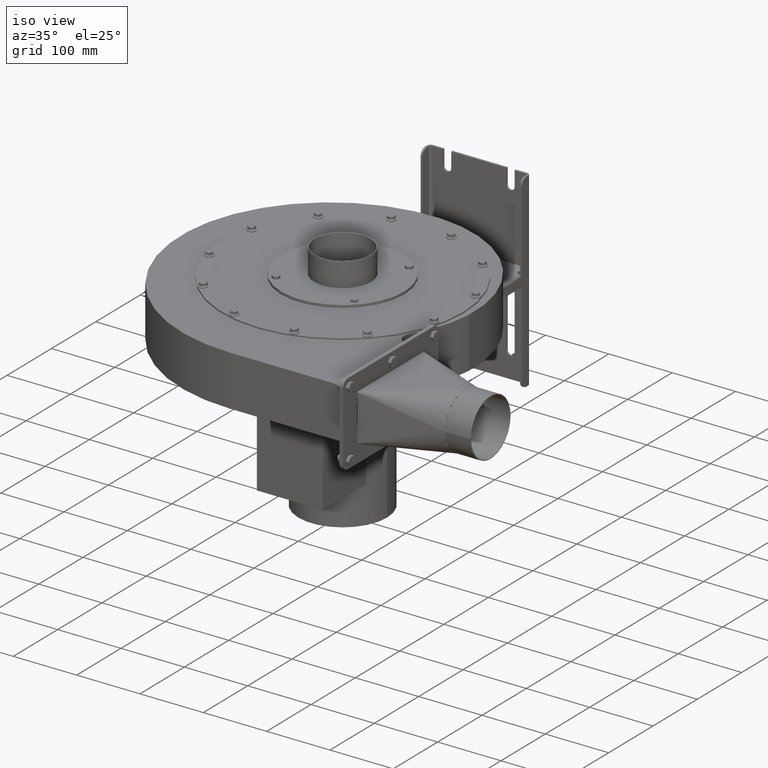
[diagram: clean part render]
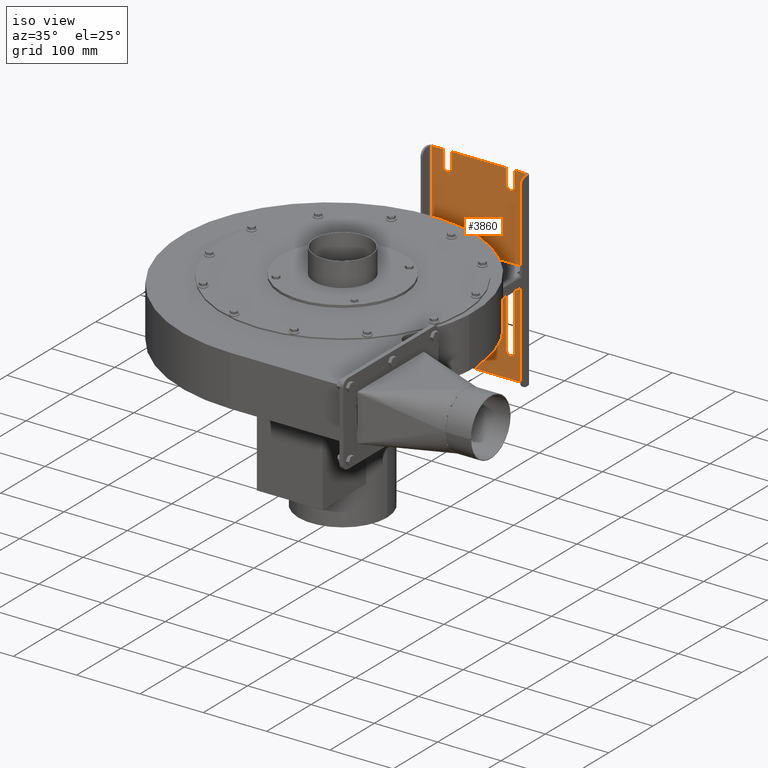
[diagram: same view with one face highlighted and labeled with its STEP entity id]
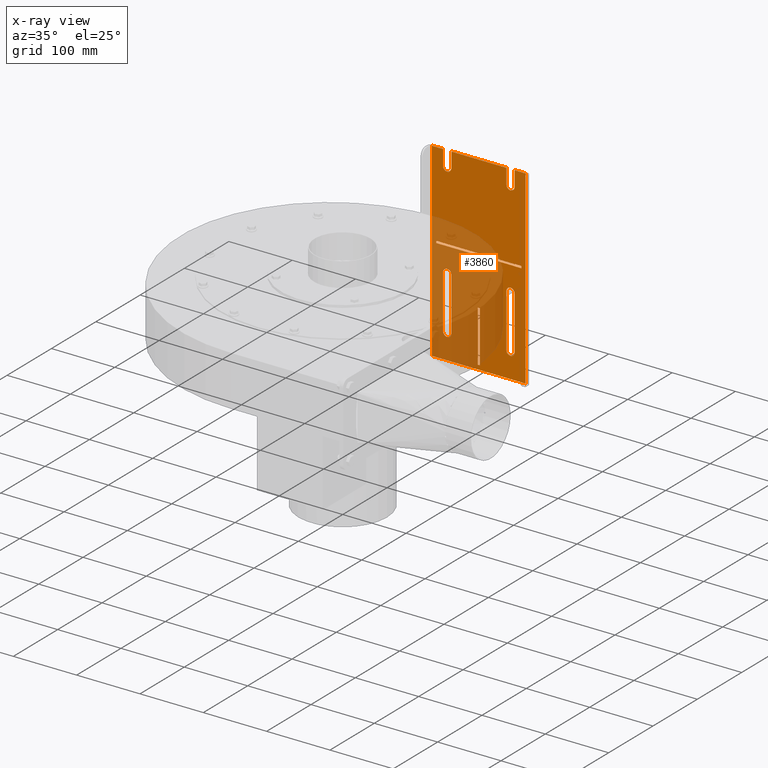
[diagram: x-ray of the same camera — body ghosted, the highlighted face saturated]
A machine part, iso view. The second image highlights one B-rep face of the part: STEP entity #3860.
The next image is the same camera in x-ray: the body ghosted, the highlighted face saturated — about 45% of this face is hidden behind the body in this view.
In plain terms, the highlighted planar face has unit normal (0, -1, 0).
Its self-contained STEP definition (entity closure, byte-faithful):
#3860 = ADVANCED_FACE( 'NONE', ( #9031, #9032, #9033, #9034, #9035 ), #9036, .T. );
#9031 = FACE_OUTER_BOUND( '', #15530, .T. );
#9032 = FACE_BOUND( '', #15531, .T. );
#9033 = FACE_BOUND( '', #15532, .T. );
#9034 = FACE_BOUND( '', #15533, .T. );
#9035 = FACE_BOUND( '', #15534, .T. );
#9036 = PLANE( '', #15535 );
#15530 = EDGE_LOOP( '', ( #27190, #27191, #27192, #27193, #27194, #27195, #27196, #27197, #27198, #27199, #27200, #27201 ) );
#15531 = EDGE_LOOP( '', ( #27202, #27203, #27204, #27205 ) );
#15532 = EDGE_LOOP( '', ( #27206, #27207, #27208, #27209 ) );
#15533 = EDGE_LOOP( '', ( #27210, #27211, #27212, #27213, #27214, #27215, #27216, #27217, #27218, #27219, #27220, #27221 ) );
#15534 = EDGE_LOOP( '', ( #27222, #27223, #27224, #27225, #27226, #27227, #27228, #27229, #27230, #27231, #27232, #27233 ) );
#15535 = AXIS2_PLACEMENT_3D( '', #27234, #27235, #27236 );
#27190 = ORIENTED_EDGE( '', *, *, #38929, .T. );
#27191 = ORIENTED_EDGE( '', *, *, #38930, .T. );
#27192 = ORIENTED_EDGE( '', *, *, #37995, .T. );
#27193 = ORIENTED_EDGE( '', *, *, #38931, .T. );
#27194 = ORIENTED_EDGE( '', *, *, #35351, .T. );
#27195 = ORIENTED_EDGE( '', *, *, #38932, .T. );
#27196 = ORIENTED_EDGE( '', *, *, #35978, .T. );
#27197 = ORIENTED_EDGE( '', *, *, #38933, .T. );
#27198 = ORIENTED_EDGE( '', *, *, #38934, .T. );
#27199 = ORIENTED_EDGE( '', *, *, #37593, .T. );
#27200 = ORIENTED_EDGE( '', *, *, #38935, .T. );
#27201 = ORIENTED_EDGE( '', *, *, #38936, .T. );
#27202 = ORIENTED_EDGE( '', *, *, #38129, .T. );
#27203 = ORIENTED_EDGE( '', *, *, #38937, .T. );
#27204 = ORIENTED_EDGE( '', *, *, #37173, .T. );
#27205 = ORIENTED_EDGE( '', *, *, #37613, .T. );
#27206 = ORIENTED_EDGE( '', *, *, #37742, .T. );
#27207 = ORIENTED_EDGE( '', *, *, #35613, .T. );
#27208 = ORIENTED_EDGE( '', *, *, #35033, .T. );
#27209 = ORIENTED_EDGE( '', *, *, #34959, .T. );
#27210 = ORIENTED_EDGE( '', *, *, #35265, .T. );
#27211 = ORIENTED_EDGE( '', *, *, #37531, .T. );
#27212 = ORIENTED_EDGE( '', *, *, #38025, .T. );
#27213 = ORIENTED_EDGE( '', *, *, #38938, .T. );
#27214 = ORIENTED_EDGE( '', *, *, #36126, .T. );
#27215 = ORIENTED_EDGE( '', *, *, #34807, .T. );
#27216 = ORIENTED_EDGE( '', *, *, #38939, .T. );
#27217 = ORIENTED_EDGE( '', *, *, #38195, .T. );
#27218 = ORIENTED_EDGE( '', *, *, #36128, .T. );
#27219 = ORIENTED_EDGE( '', *, *, #38940, .T. );
#27220 = ORIENTED_EDGE( '', *, *, #38023, .T. );
#27221 = ORIENTED_EDGE( '', *, *, #38941, .T. );
#27222 = ORIENTED_EDGE( '', *, *, #38330, .T. );
#27223 = ORIENTED_EDGE( '', *, *, #38942, .T. );
#27224 = ORIENTED_EDGE( '', *, *, #38943, .T. );
#27225 = ORIENTED_EDGE( '', *, *, #37458, .T. );
#27226 = ORIENTED_EDGE( '', *, *, #38944, .T. );
#27227 = ORIENTED_EDGE( '', *, *, #38945, .T. );
#27228 = ORIENTED_EDGE( '', *, *, #35300, .T. );
#27229 = ORIENTED_EDGE( '', *, *, #38946, .T. );
#27230 = ORIENTED_EDGE( '', *, *, #38947, .T. );
#27231 = ORIENTED_EDGE( '', *, *, #37989, .T. );
#27232 = ORIENTED_EDGE( '', *, *, #38948, .T. );
#27233 = ORIENTED_EDGE( '', *, *, #37505, .T. );
#27234 = CARTESIAN_POINT( '', ( 1.00251468229415E-012, 307.000000000000, -99.0000000000000 ) );
#27235 = DIRECTION( '', ( 1.92055561245564E-015, -1.00000000000000, 3.00055383520235E-016 ) );
#27236 = DIRECTION( '', ( 0.000000000000000, -3.00055383520235E-016, -1.00000000000000 ) );
#34807 = EDGE_CURVE( 'NONE', #40835, #40833, #40836, .T. );
#34959 = EDGE_CURVE( 'NONE', #41106, #41104, #41107, .T. );
#35033 = EDGE_CURVE( 'NONE', #41236, #41106, #41237, .T. );
#35265 = EDGE_CURVE( 'NONE', #41648, #41646, #41649, .T. );
#35300 = EDGE_CURVE( 'NONE', #41710, #41708, #41711, .T. );
#35351 = EDGE_CURVE( 'NONE', #41796, #41794, #41797, .T. );
#35613 = EDGE_CURVE( 'NONE', #42242, #41236, #42243, .T. );
#35978 = EDGE_CURVE( 'NONE', #42865, #42863, #42866, .T. );
#36126 = EDGE_CURVE( 'NONE', #43118, #40835, #43119, .T. );
#36128 = EDGE_CURVE( 'NONE', #43122, #43120, #43123, .T. );
#37173 = EDGE_CURVE( 'NONE', #44912, #44910, #44913, .T. );
#37458 = EDGE_CURVE( 'NONE', #45376, #45374, #45377, .T. );
#37505 = EDGE_CURVE( 'NONE', #45449, #45447, #45450, .T. );
#37531 = EDGE_CURVE( 'NONE', #41646, #45486, #45488, .T. );
#37593 = EDGE_CURVE( 'NONE', #45578, #45582, #45584, .T. );
#37613 = EDGE_CURVE( 'NONE', #44910, #45609, #45611, .T. );
#37742 = EDGE_CURVE( 'NONE', #41104, #42242, #45800, .T. );
#37989 = EDGE_CURVE( 'NONE', #46161, #45794, #46162, .T. );
#37995 = EDGE_CURVE( 'NONE', #46172, #46170, #46173, .T. );
#38023 = EDGE_CURVE( 'NONE', #46215, #46213, #46216, .T. );
#38025 = EDGE_CURVE( 'NONE', #45486, #46217, #46219, .T. );
#38129 = EDGE_CURVE( 'NONE', #45609, #46364, #46366, .T. );
#38195 = EDGE_CURVE( 'NONE', #46459, #43122, #46460, .T. );
#38330 = EDGE_CURVE( 'NONE', #45447, #46648, #46650, .T. );
#38929 = EDGE_CURVE( 'NONE', #47552, #47553, #47554, .T. );
#38930 = EDGE_CURVE( 'NONE', #47553, #46172, #47555, .T. );
#38931 = EDGE_CURVE( 'NONE', #46170, #41796, #47556, .T. );
#38932 = EDGE_CURVE( 'NONE', #41794, #42865, #47557, .T. );
#38933 = EDGE_CURVE( 'NONE', #42863, #47558, #47559, .T. );
#38934 = EDGE_CURVE( 'NONE', #47558, #45578, #47560, .T. );
#38935 = EDGE_CURVE( 'NONE', #45582, #47561, #47562, .T. );
#38936 = EDGE_CURVE( 'NONE', #47561, #47552, #47563, .T. );
#38937 = EDGE_CURVE( 'NONE', #46364, #44912, #47564, .T. );
#38938 = EDGE_CURVE( 'NONE', #46217, #43118, #47565, .T. );
#38939 = EDGE_CURVE( 'NONE', #40833, #46459, #47566, .T. );
#38940 = EDGE_CURVE( 'NONE', #43120, #46215, #47567, .T. );
#38941 = EDGE_CURVE( 'NONE', #46213, #41648, #47568, .T. );
#38942 = EDGE_CURVE( 'NONE', #46648, #47569, #47570, .T. );
#38943 = EDGE_CURVE( 'NONE', #47569, #45376, #47571, .T. );
#38944 = EDGE_CURVE( 'NONE', #45374, #47572, #47573, .T. );
#38945 = EDGE_CURVE( 'NONE', #47572, #41710, #47574, .T. );
#38946 = EDGE_CURVE( 'NONE', #41708, #47575, #47576, .T. );
#38947 = EDGE_CURVE( 'NONE', #47575, #46161, #47577, .T. );
#38948 = EDGE_CURVE( 'NONE', #45794, #45449, #47578, .T. );
#40833 = VERTEX_POINT( 'NONE', #49618 );
#40835 = VERTEX_POINT( 'NONE', #49621 );
#40836 = LINE( '', #49622, #49623 );
#41104 = VERTEX_POINT( 'NONE', #50064 );
#41106 = VERTEX_POINT( 'NONE', #50067 );
#41107 = CIRCLE( '', #50068, 6.50000000000000 );
#41236 = VERTEX_POINT( 'NONE', #50279 );
#41237 = LINE( '', #50280, #50281 );
#41646 = VERTEX_POINT( 'NONE', #50911 );
#41648 = VERTEX_POINT( 'NONE', #50914 );
#41649 = LINE( '', #50915, #50916 );
#41708 = VERTEX_POINT( 'NONE', #51016 );
#41710 = VERTEX_POINT( 'NONE', #51019 );
#41711 = LINE( '', #51020, #51021 );
#41794 = VERTEX_POINT( 'NONE', #51128 );
#41796 = VERTEX_POINT( 'NONE', #51130 );
#41797 = LINE( '', #51131, #51132 );
#42242 = VERTEX_POINT( 'NONE', #51990 );
#42243 = CIRCLE( '', #51991, 6.50000000000000 );
#42863 = VERTEX_POINT( 'NONE', #53093 );
#42865 = VERTEX_POINT( 'NONE', #53095 );
#42866 = LINE( '', #53096, #53097 );
#43118 = VERTEX_POINT( 'NONE', #53515 );
#43119 = LINE( '', #53516, #53517 );
#43120 = VERTEX_POINT( 'NONE', #53518 );
#43122 = VERTEX_POINT( 'NONE', #53521 );
#43123 = LINE( '', #53522, #53523 );
#44910 = VERTEX_POINT( 'NONE', #56194 );
#44912 = VERTEX_POINT( 'NONE', #56197 );
#44913 = LINE( '', #56198, #56199 );
#45374 = VERTEX_POINT( 'NONE', #57000 );
#45376 = VERTEX_POINT( 'NONE', #57003 );
#45377 = LINE( '', #57004, #57005 );
#45447 = VERTEX_POINT( 'NONE', #57107 );
#45449 = VERTEX_POINT( 'NONE', #57110 );
#45450 = LINE( '', #57111, #57112 );
#45486 = VERTEX_POINT( 'NONE', #57163 );
#45488 = LINE( '', #57166, #57167 );
#45578 = VERTEX_POINT( 'NONE', #57353 );
#45582 = VERTEX_POINT( 'NONE', #57359 );
#45584 = LINE( '', #57362, #57363 );
#45609 = VERTEX_POINT( 'NONE', #57398 );
#45611 = CIRCLE( '', #57401, 6.50000000000000 );
#45794 = VERTEX_POINT( 'NONE', #57692 );
#45800 = LINE( '', #57702, #57703 );
#46161 = VERTEX_POINT( 'NONE', #58355 );
#46162 = LINE( '', #58356, #58357 );
#46170 = VERTEX_POINT( 'NONE', #58367 );
#46172 = VERTEX_POINT( 'NONE', #58370 );
#46173 = CIRCLE( '', #58371, 6.50000000000000 );
#46213 = VERTEX_POINT( 'NONE', #58441 );
#46215 = VERTEX_POINT( 'NONE', #58444 );
#46216 = LINE( '', #58445, #58446 );
#46217 = VERTEX_POINT( 'NONE', #58447 );
#46219 = LINE( '', #58450, #58451 );
#46364 = VERTEX_POINT( 'NONE', #58661 );
#46366 = LINE( '', #58664, #58665 );
#46459 = VERTEX_POINT( 'NONE', #58804 );
#46460 = LINE( '', #58805, #58806 );
#46648 = VERTEX_POINT( 'NONE', #59150 );
#46650 = LINE( '', #59153, #59154 );
#47552 = VERTEX_POINT( 'NONE', #60658 );
#47553 = VERTEX_POINT( 'NONE', #60659 );
#47554 = LINE( '', #60660, #60661 );
#47555 = LINE( '', #60662, #60663 );
#47556 = LINE( '', #60664, #60665 );
#47557 = LINE( '', #60666, #60667 );
#47558 = VERTEX_POINT( 'NONE', #60668 );
#47559 = LINE( '', #60669, #60670 );
#47560 = LINE( '', #60671, #60672 );
#47561 = VERTEX_POINT( 'NONE', #60673 );
#47562 = CIRCLE( '', #60674, 6.50000000000000 );
#47563 = LINE( '', #60675, #60676 );
#47564 = CIRCLE( '', #60677, 6.50000000000000 );
#47565 = LINE( '', #60678, #60679 );
#47566 = LINE( '', #60680, #60681 );
#47567 = LINE( '', #60682, #60683 );
#47568 = LINE( '', #60684, #60685 );
#47569 = VERTEX_POINT( 'NONE', #60686 );
#47570 = LINE( '', #60687, #60688 );
#47571 = LINE( '', #60689, #60690 );
#47572 = VERTEX_POINT( 'NONE', #60691 );
#47573 = LINE( '', #60692, #60693 );
#47574 = LINE( '', #60694, #60695 );
#47575 = VERTEX_POINT( 'NONE', #60696 );
#47576 = LINE( '', #60697, #60698 );
#47577 = LINE( '', #60699, #60700 );
#47578 = LINE( '', #60701, #60702 );
#49618 = CARTESIAN_POINT( '', ( -67.1999999999990, 307.000000000000, -86.1000000000000 ) );
#49621 = CARTESIAN_POINT( '', ( -56.7999999999990, 307.000000000000, -86.1000000000000 ) );
#49622 = CARTESIAN_POINT( '', ( 1.00251468229415E-012, 307.000000000000, -86.1000000000000 ) );
#49623 = VECTOR( '', #64480, 1000.00000000000 );
#50064 = CARTESIAN_POINT( '', ( 43.5000000000011, 307.000000000000, -209.000000000000 ) );
#50067 = CARTESIAN_POINT( '', ( 56.5000000000010, 307.000000000000, -209.000000000000 ) );
#50068 = AXIS2_PLACEMENT_3D( '', #64673, #64674, #64675 );
#50279 = CARTESIAN_POINT( '', ( 56.5000000000011, 307.000000000000, -125.000000000000 ) );
#50280 = CARTESIAN_POINT( '', ( 56.5000000000010, 307.000000000000, -99.0000000000000 ) );
#50281 = VECTOR( '', #64754, 1000.00000000000 );
#50911 = CARTESIAN_POINT( '', ( 67.2000000000010, 307.000000000000, -86.1000000000000 ) );
#50914 = CARTESIAN_POINT( '', ( 67.2000000000010, 307.000000000000, -82.9000000000000 ) );
#50915 = CARTESIAN_POINT( '', ( 67.2000000000010, 307.000000000000, -99.0000000000000 ) );
#50916 = VECTOR( '', #65094, 1000.00000000000 );
#51016 = CARTESIAN_POINT( '', ( -1.59999999999883, 307.000000000000, -242.200000000000 ) );
#51019 = CARTESIAN_POINT( '', ( 1.60000000000116, 307.000000000000, -242.200000000000 ) );
#51020 = CARTESIAN_POINT( '', ( 1.00251468229415E-012, 307.000000000000, -242.200000000000 ) );
#51021 = VECTOR( '', #65126, 1000.00000000000 );
#51128 = CARTESIAN_POINT( '', ( -73.9999999999991, 307.000000000000, 51.0000000000000 ) );
#51130 = CARTESIAN_POINT( '', ( -56.4999999999990, 307.000000000000, 51.0000000000000 ) );
#51131 = CARTESIAN_POINT( '', ( 1.00251468229415E-012, 307.000000000000, 51.0000000000000 ) );
#51132 = VECTOR( '', #65192, 1000.00000000000 );
#51990 = CARTESIAN_POINT( '', ( 43.5000000000010, 307.000000000000, -125.000000000000 ) );
#51991 = AXIS2_PLACEMENT_3D( '', #65468, #65469, #65470 );
#53093 = CARTESIAN_POINT( '', ( 74.0000000000011, 307.000000000000, -249.000000000000 ) );
#53095 = CARTESIAN_POINT( '', ( -73.9999999999989, 307.000000000000, -249.000000000000 ) );
#53096 = CARTESIAN_POINT( '', ( 1.00251468229415E-012, 307.000000000000, -249.000000000000 ) );
#53097 = VECTOR( '', #65921, 1000.00000000000 );
#53515 = CARTESIAN_POINT( '', ( -56.7999999999993, 307.000000000000, -86.0000000000000 ) );
#53516 = CARTESIAN_POINT( '', ( -56.7999999999990, 307.000000000000, -99.0000000000000 ) );
#53517 = VECTOR( '', #66083, 1000.00000000000 );
#53518 = CARTESIAN_POINT( '', ( -56.7999999999993, 307.000000000000, -83.0000000000000 ) );
#53521 = CARTESIAN_POINT( '', ( -56.7999999999990, 307.000000000000, -82.9000000000000 ) );
#53522 = CARTESIAN_POINT( '', ( -56.7999999999990, 307.000000000000, -99.0000000000000 ) );
#53523 = VECTOR( '', #66085, 1000.00000000000 );
#56194 = CARTESIAN_POINT( '', ( -56.4999999999989, 307.000000000000, -125.000000000000 ) );
#56197 = CARTESIAN_POINT( '', ( -56.4999999999989, 307.000000000000, -209.000000000000 ) );
#56198 = CARTESIAN_POINT( '', ( -56.4999999999990, 307.000000000000, -99.0000000000000 ) );
#56199 = VECTOR( '', #67757, 1000.00000000000 );
#57000 = CARTESIAN_POINT( '', ( 1.50000000000134, 307.000000000000, -231.800000000000 ) );
#57003 = CARTESIAN_POINT( '', ( 1.50000000000124, 307.000000000000, -171.200000000000 ) );
#57004 = CARTESIAN_POINT( '', ( 1.50000000000125, 307.000000000000, -99.0000000000000 ) );
#57005 = VECTOR( '', #68176, 1000.00000000000 );
#57107 = CARTESIAN_POINT( '', ( -1.59999999999892, 307.000000000000, -160.800000000000 ) );
#57110 = CARTESIAN_POINT( '', ( -1.59999999999892, 307.000000000000, -171.200000000000 ) );
#57111 = CARTESIAN_POINT( '', ( -1.59999999999892, 307.000000000000, -99.0000000000000 ) );
#57112 = VECTOR( '', #68221, 1000.00000000000 );
#57163 = CARTESIAN_POINT( '', ( 56.8000000000010, 307.000000000000, -86.1000000000000 ) );
#57166 = CARTESIAN_POINT( '', ( 1.00251468229415E-012, 307.000000000000, -86.1000000000000 ) );
#57167 = VECTOR( '', #68244, 1000.00000000000 );
#57353 = CARTESIAN_POINT( '', ( 56.5000000000009, 307.000000000000, 51.0000000000000 ) );
#57359 = CARTESIAN_POINT( '', ( 56.5000000000010, 307.000000000000, 27.0000000000000 ) );
#57362 = CARTESIAN_POINT( '', ( 56.5000000000010, 307.000000000000, -99.0000000000000 ) );
#57363 = VECTOR( '', #68310, 1000.00000000000 );
#57398 = CARTESIAN_POINT( '', ( -43.4999999999989, 307.000000000000, -125.000000000000 ) );
#57401 = AXIS2_PLACEMENT_3D( '', #68330, #68331, #68332 );
#57692 = CARTESIAN_POINT( '', ( -1.49999999999871, 307.000000000000, -171.200000000000 ) );
#57702 = CARTESIAN_POINT( '', ( 43.5000000000010, 307.000000000000, -99.0000000000000 ) );
#57703 = VECTOR( '', #68465, 1000.00000000000 );
#58355 = CARTESIAN_POINT( '', ( -1.49999999999857, 307.000000000000, -231.800000000000 ) );
#58356 = CARTESIAN_POINT( '', ( -1.49999999999857, 307.000000000000, -99.0000000000000 ) );
#58357 = VECTOR( '', #68700, 1000.00000000000 );
#58367 = CARTESIAN_POINT( '', ( -56.4999999999991, 307.000000000000, 27.0000000000000 ) );
#58370 = CARTESIAN_POINT( '', ( -43.4999999999991, 307.000000000000, 27.0000000000000 ) );
#58371 = AXIS2_PLACEMENT_3D( '', #68707, #68708, #68709 );
#58441 = CARTESIAN_POINT( '', ( 56.8000000000010, 307.000000000000, -82.9000000000000 ) );
#58444 = CARTESIAN_POINT( '', ( 56.8000000000010, 307.000000000000, -83.0000000000000 ) );
#58445 = CARTESIAN_POINT( '', ( 56.8000000000010, 307.000000000000, -99.0000000000000 ) );
#58446 = VECTOR( '', #68733, 1000.00000000000 );
#58447 = CARTESIAN_POINT( '', ( 56.8000000000010, 307.000000000000, -86.0000000000000 ) );
#58450 = CARTESIAN_POINT( '', ( 56.8000000000010, 307.000000000000, -99.0000000000000 ) );
#58451 = VECTOR( '', #68735, 1000.00000000000 );
#58661 = CARTESIAN_POINT( '', ( -43.4999999999989, 307.000000000000, -209.000000000000 ) );
#58664 = CARTESIAN_POINT( '', ( -43.4999999999990, 307.000000000000, -99.0000000000000 ) );
#58665 = VECTOR( '', #68843, 1000.00000000000 );
#58804 = CARTESIAN_POINT( '', ( -67.1999999999990, 307.000000000000, -82.9000000000000 ) );
#58805 = CARTESIAN_POINT( '', ( 1.00251468229415E-012, 307.000000000000, -82.9000000000000 ) );
#58806 = VECTOR( '', #68909, 1000.00000000000 );
#59150 = CARTESIAN_POINT( '', ( 1.60000000000108, 307.000000000000, -160.800000000000 ) );
#59153 = CARTESIAN_POINT( '', ( 1.00251468229415E-012, 307.000000000000, -160.800000000000 ) );
#59154 = VECTOR( '', #69031, 1000.00000000000 );
#60658 = CARTESIAN_POINT( '', ( 43.5000000000009, 307.000000000000, 51.0000000000000 ) );
#60659 = CARTESIAN_POINT( '', ( -43.4999999999991, 307.000000000000, 51.0000000000000 ) );
#60660 = CARTESIAN_POINT( '', ( 1.00251468229415E-012, 307.000000000000, 51.0000000000000 ) );
#60661 = VECTOR( '', #69961, 1000.00000000000 );
#60662 = CARTESIAN_POINT( '', ( -43.4999999999990, 307.000000000000, -99.0000000000000 ) );
#60663 = VECTOR( '', #69962, 1000.00000000000 );
#60664 = CARTESIAN_POINT( '', ( -56.4999999999990, 307.000000000000, -99.0000000000000 ) );
#60665 = VECTOR( '', #69963, 1000.00000000000 );
#60666 = CARTESIAN_POINT( '', ( -73.9999999999990, 307.000000000000, -99.0000000000000 ) );
#60667 = VECTOR( '', #69964, 1000.00000000000 );
#60668 = CARTESIAN_POINT( '', ( 74.0000000000009, 307.000000000000, 51.0000000000000 ) );
#60669 = CARTESIAN_POINT( '', ( 74.0000000000010, 307.000000000000, -99.0000000000000 ) );
#60670 = VECTOR( '', #69965, 1000.00000000000 );
#60671 = CARTESIAN_POINT( '', ( 1.00251468229415E-012, 307.000000000000, 51.0000000000000 ) );
#60672 = VECTOR( '', #69966, 1000.00000000000 );
#60673 = CARTESIAN_POINT( '', ( 43.5000000000008, 307.000000000000, 27.0000000000000 ) );
#60674 = AXIS2_PLACEMENT_3D( '', #69967, #69968, #69969 );
#60675 = CARTESIAN_POINT( '', ( 43.5000000000010, 307.000000000000, -99.0000000000000 ) );
#60676 = VECTOR( '', #69970, 1000.00000000000 );
#60677 = AXIS2_PLACEMENT_3D( '', #69971, #69972, #69973 );
#60678 = CARTESIAN_POINT( '', ( 1.00251468229415E-012, 307.000000000000, -86.0000000000000 ) );
#60679 = VECTOR( '', #69974, 1000.00000000000 );
#60680 = CARTESIAN_POINT( '', ( -67.1999999999990, 307.000000000000, -99.0000000000000 ) );
#60681 = VECTOR( '', #69975, 1000.00000000000 );
#60682 = CARTESIAN_POINT( '', ( 7.83008243973728E-013, 307.000000000000, -83.0000000000000 ) );
#60683 = VECTOR( '', #69976, 1000.00000000000 );
#60684 = CARTESIAN_POINT( '', ( 1.00251468229415E-012, 307.000000000000, -82.9000000000000 ) );
#60685 = VECTOR( '', #69977, 1000.00000000000 );
#60686 = CARTESIAN_POINT( '', ( 1.60000000000108, 307.000000000000, -171.200000000000 ) );
#60687 = CARTESIAN_POINT( '', ( 1.60000000000108, 307.000000000000, -99.0000000000000 ) );
#60688 = VECTOR( '', #69978, 1000.00000000000 );
#60689 = CARTESIAN_POINT( '', ( 1.00251468229415E-012, 307.000000000000, -171.200000000000 ) );
#60690 = VECTOR( '', #69979, 1000.00000000000 );
#60691 = CARTESIAN_POINT( '', ( 1.60000000000115, 307.000000000000, -231.800000000000 ) );
#60692 = CARTESIAN_POINT( '', ( 1.00251468229415E-012, 307.000000000000, -231.800000000000 ) );
#60693 = VECTOR( '', #69980, 1000.00000000000 );
#60694 = CARTESIAN_POINT( '', ( 1.60000000000115, 307.000000000000, -99.0000000000000 ) );
#60695 = VECTOR( '', #69981, 1000.00000000000 );
#60696 = CARTESIAN_POINT( '', ( -1.59999999999884, 307.000000000000, -231.800000000000 ) );
#60697 = CARTESIAN_POINT( '', ( -1.59999999999884, 307.000000000000, -99.0000000000000 ) );
#60698 = VECTOR( '', #69982, 1000.00000000000 );
#60699 = CARTESIAN_POINT( '', ( 1.00251468229415E-012, 307.000000000000, -231.800000000000 ) );
#60700 = VECTOR( '', #69983, 1000.00000000000 );
#60701 = CARTESIAN_POINT( '', ( 1.00251468229415E-012, 307.000000000000, -171.200000000000 ) );
#60702 = VECTOR( '', #69984, 1000.00000000000 );
#64480 = DIRECTION( '', ( -1.00000000000000, -1.92055561245564E-015, 5.76273050867317E-031 ) );
#64673 = CARTESIAN_POINT( '', ( 50.0000000000011, 307.000000000000, -209.000000000000 ) );
#64674 = DIRECTION( '', ( 0.000000000000000, 1.00000000000000, -2.05023563559743E-030 ) );
#64675 = DIRECTION( '', ( -1.00000000000000, 0.000000000000000, 0.000000000000000 ) );
#64754 = DIRECTION( '', ( 0.000000000000000, -3.00055383520235E-016, -1.00000000000000 ) );
#65094 = DIRECTION( '', ( 0.000000000000000, -3.00055383520235E-016, -1.00000000000000 ) );
#65126 = DIRECTION( '', ( -1.00000000000000, -1.92055561245564E-015, 5.76273050867317E-031 ) );
#65192 = DIRECTION( '', ( -1.00000000000000, -1.92055561245564E-015, 5.76273050867317E-031 ) );
#65468 = CARTESIAN_POINT( '', ( 50.0000000000011, 307.000000000000, -125.000000000000 ) );
#65469 = DIRECTION( '', ( 0.000000000000000, 1.00000000000000, -2.05023563559743E-030 ) );
#65470 = DIRECTION( '', ( -1.00000000000000, 0.000000000000000, 0.000000000000000 ) );
#65921 = DIRECTION( '', ( 1.00000000000000, 1.92055561245564E-015, -5.76273050867317E-031 ) );
#66083 = DIRECTION( '', ( 0.000000000000000, -3.00055383520235E-016, -1.00000000000000 ) );
#66085 = DIRECTION( '', ( 0.000000000000000, -3.00055383520235E-016, -1.00000000000000 ) );
#67757 = DIRECTION( '', ( 0.000000000000000, 3.00055383520235E-016, 1.00000000000000 ) );
#68176 = DIRECTION( '', ( 0.000000000000000, -3.00055383520235E-016, -1.00000000000000 ) );
#68221 = DIRECTION( '', ( 0.000000000000000, 3.00055383520235E-016, 1.00000000000000 ) );
#68244 = DIRECTION( '', ( -1.00000000000000, -1.92055561245564E-015, 5.76273050867317E-031 ) );
#68310 = DIRECTION( '', ( 0.000000000000000, -3.00055383520235E-016, -1.00000000000000 ) );
#68330 = CARTESIAN_POINT( '', ( -49.9999999999989, 307.000000000000, -125.000000000000 ) );
#68331 = DIRECTION( '', ( 0.000000000000000, 1.00000000000000, -2.05023563559743E-030 ) );
#68332 = DIRECTION( '', ( -1.00000000000000, 0.000000000000000, 0.000000000000000 ) );
#68465 = DIRECTION( '', ( 0.000000000000000, 3.00055383520235E-016, 1.00000000000000 ) );
#68700 = DIRECTION( '', ( 0.000000000000000, 3.00055383520235E-016, 1.00000000000000 ) );
#68707 = CARTESIAN_POINT( '', ( -49.9999999999991, 307.000000000000, 27.0000000000000 ) );
#68708 = DIRECTION( '', ( 0.000000000000000, 1.00000000000000, -2.05023563559743E-030 ) );
#68709 = DIRECTION( '', ( -1.00000000000000, 0.000000000000000, 0.000000000000000 ) );
#68733 = DIRECTION( '', ( 0.000000000000000, 3.00055383520235E-016, 1.00000000000000 ) );
#68735 = DIRECTION( '', ( 0.000000000000000, 3.00055383520235E-016, 1.00000000000000 ) );
#68843 = DIRECTION( '', ( 0.000000000000000, -3.00055383520235E-016, -1.00000000000000 ) );
#68909 = DIRECTION( '', ( 1.00000000000000, 1.92055561245564E-015, -5.76273050867317E-031 ) );
#69031 = DIRECTION( '', ( 1.00000000000000, 1.92055561245564E-015, -5.76273050867317E-031 ) );
#69961 = DIRECTION( '', ( -1.00000000000000, -1.92055561245564E-015, 5.76273050867317E-031 ) );
#69962 = DIRECTION( '', ( 0.000000000000000, -3.00055383520235E-016, -1.00000000000000 ) );
#69963 = DIRECTION( '', ( 0.000000000000000, 3.00055383520235E-016, 1.00000000000000 ) );
#69964 = DIRECTION( '', ( 0.000000000000000, -3.00055383520235E-016, -1.00000000000000 ) );
#69965 = DIRECTION( '', ( 0.000000000000000, 3.00055383520235E-016, 1.00000000000000 ) );
#69966 = DIRECTION( '', ( -1.00000000000000, -1.92055561245564E-015, 5.76273050867317E-031 ) );
#69967 = CARTESIAN_POINT( '', ( 50.0000000000008, 307.000000000000, 27.0000000000000 ) );
#69968 = DIRECTION( '', ( 0.000000000000000, 1.00000000000000, -2.05023563559743E-030 ) );
#69969 = DIRECTION( '', ( -1.00000000000000, 0.000000000000000, 0.000000000000000 ) );
#69970 = DIRECTION( '', ( 0.000000000000000, 3.00055383520235E-016, 1.00000000000000 ) );
#69971 = CARTESIAN_POINT( '', ( -49.9999999999989, 307.000000000000, -209.000000000000 ) );
#69972 = DIRECTION( '', ( 0.000000000000000, 1.00000000000000, -2.05023563559743E-030 ) );
#69973 = DIRECTION( '', ( -1.00000000000000, 0.000000000000000, 0.000000000000000 ) );
#69974 = DIRECTION( '', ( -1.00000000000000, -1.92055561245564E-015, 5.76273050867317E-031 ) );
#69975 = DIRECTION( '', ( 0.000000000000000, 3.00055383520235E-016, 1.00000000000000 ) );
#69976 = DIRECTION( '', ( 1.00000000000000, -3.77076540128849E-046, 1.11943758389703E-015 ) );
#69977 = DIRECTION( '', ( 1.00000000000000, 1.92055561245564E-015, -5.76273050867317E-031 ) );
#69978 = DIRECTION( '', ( 0.000000000000000, -3.00055383520235E-016, -1.00000000000000 ) );
#69979 = DIRECTION( '', ( -1.00000000000000, -1.92055561245564E-015, 5.76273050867317E-031 ) );
#69980 = DIRECTION( '', ( 1.00000000000000, 1.92055561245564E-015, -5.76273050867317E-031 ) );
#69981 = DIRECTION( '', ( 0.000000000000000, -3.00055383520235E-016, -1.00000000000000 ) );
#69982 = DIRECTION( '', ( 0.000000000000000, 3.00055383520235E-016, 1.00000000000000 ) );
#69983 = DIRECTION( '', ( 1.00000000000000, 1.92055561245564E-015, -5.76273050867317E-031 ) );
#69984 = DIRECTION( '', ( -1.00000000000000, -1.92055561245564E-015, 5.76273050867317E-031 ) );